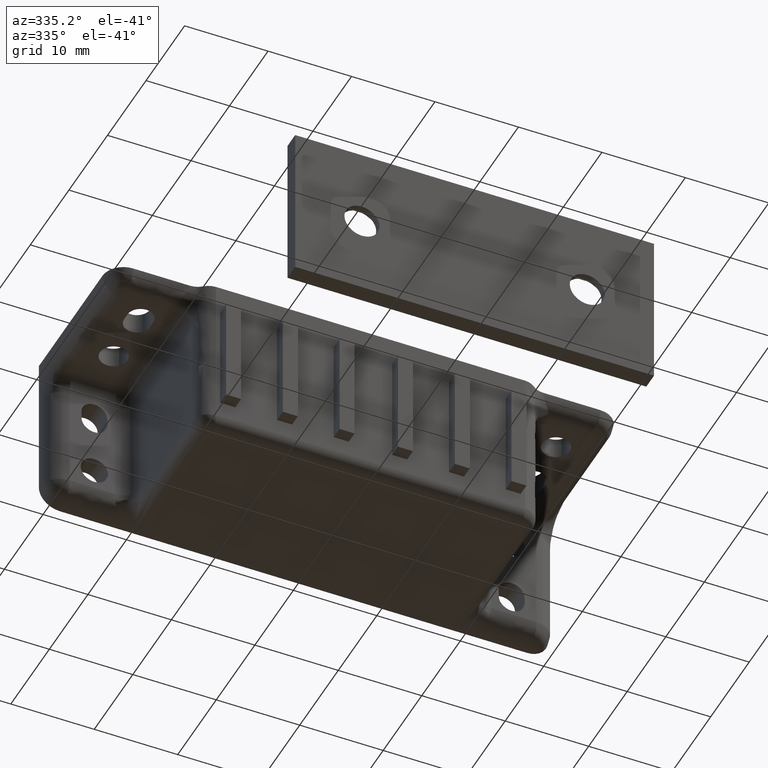
[diagram: clean part render]
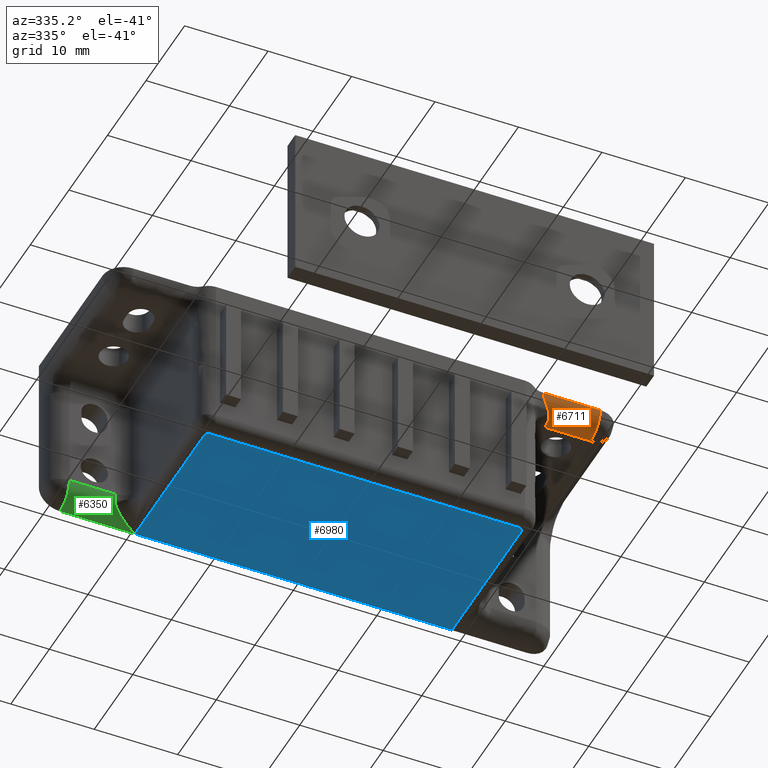
[diagram: same view with three faces highlighted in distinct colors, each labeled with its STEP entity id]
A machine part, auxiliary view with three faces highlighted in distinct colors.
Their STEP definitions:

[orange] entity #6711 — the highlighted face is a freeform B-spline surface patch.
#3738=CARTESIAN_POINT('',(22.500000000000000,-16.500000000000000,7.499999999958390));
#3739=VERTEX_POINT('',#3738);
#4325=CARTESIAN_POINT('',(28.0,-16.500000000000000,7.499999999958390));
#4326=VERTEX_POINT('',#4325);
#4327=CARTESIAN_POINT('',(28.0,-16.500000000000000,7.499999999958390));
#4328=CARTESIAN_POINT('',(22.500000000000000,-16.500000000000000,7.499999999958390));
#4329=QUASI_UNIFORM_CURVE('',1,(#4327,#4328),.UNSPECIFIED.,.F.,.U.);
#4330=EDGE_CURVE('',#4326,#3739,#4329,.T.);
#5240=CARTESIAN_POINT('',(21.145751311064600,-19.0,9.999999999958389));
#5241=VERTEX_POINT('',#5240);
#5280=CARTESIAN_POINT('',(22.500000000000000,-17.333333333333300,7.642977396003239));
#5281=VERTEX_POINT('',#5280);
#5295=CARTESIAN_POINT('',(21.145751311064600,-19.0,9.999999999958389));
#5296=CARTESIAN_POINT('',(21.145751311064600,-19.000000000000011,9.963854046847802));
#5297=CARTESIAN_POINT('',(21.147352928604491,-18.999216504818630,9.927844452167063));
#5298=CARTESIAN_POINT('',(21.153667161062490,-18.996112908623981,9.856090624184484));
#5299=CARTESIAN_POINT('',(21.158411988343669,-18.993776631082149,9.820204858372033));
#5300=CARTESIAN_POINT('',(21.176781509306782,-18.984661863041580,9.714608792973422));
#5301=CARTESIAN_POINT('',(21.194501581448211,-18.975801484904640,9.646568078022835));
#5302=CARTESIAN_POINT('',(21.238349027958339,-18.953264806814161,9.514202816201433));
#5303=CARTESIAN_POINT('',(21.264479009983368,-18.939584012342280,9.449879958030232));
#5304=CARTESIAN_POINT('',(21.323107750106889,-18.907795857526882,9.324188397303074));
#5305=CARTESIAN_POINT('',(21.355784986418382,-18.889578702517859,9.262557836852286));
#5306=CARTESIAN_POINT('',(21.458711505244949,-18.829818643201019,9.084809108610061));
#5307=CARTESIAN_POINT('',(21.534095310978142,-18.783061741658830,8.974533511747254));
#5308=CARTESIAN_POINT('',(21.689448954157481,-18.676204093748719,8.763841362476262));
#5309=CARTESIAN_POINT('',(21.769551021974038,-18.616084574414490,8.663527894844998));
#5310=CARTESIAN_POINT('',(21.889029787539439,-18.514432316122861,8.518259352201421));
#5311=CARTESIAN_POINT('',(21.928660410827881,-18.478684413003389,8.470838384201251));
#5312=CARTESIAN_POINT('',(22.006145492320830,-18.403838906393769,8.378604097697329));
#5313=CARTESIAN_POINT('',(22.044107186776149,-18.364654806212851,8.333663687107709));
#5314=CARTESIAN_POINT('',(22.154642707725142,-18.241277774476831,8.202109923356698));
#5315=CARTESIAN_POINT('',(22.223976793064111,-18.151389335630661,8.118720423528675));
#5316=CARTESIAN_POINT('',(22.316258333729479,-18.001211347073529,7.999890156211960));
#5317=CARTESIAN_POINT('',(22.345129517345779,-17.948390796579190,7.961213851567345));
#5318=CARTESIAN_POINT('',(22.397209511405109,-17.837163429928989,7.886595443289926));
#5319=CARTESIAN_POINT('',(22.420059308343902,-17.779547017301311,7.851172045113658));
#5320=CARTESIAN_POINT('',(22.458103382486101,-17.659831847400330,7.784262597926549));
#5321=CARTESIAN_POINT('',(22.473306363809080,-17.597736635749541,7.752774889995756));
#5322=CARTESIAN_POINT('',(22.489067208810720,-17.500702265735811,7.708743449628510));
#5323=CARTESIAN_POINT('',(22.493137591275580,-17.467652195462879,7.694584863539097));
#5324=CARTESIAN_POINT('',(22.498593922642879,-17.401031621070551,7.667741064838556));
#5325=CARTESIAN_POINT('',(22.500000000000000,-17.367365116371360,7.655009448284259));
#5326=CARTESIAN_POINT('',(22.500000000000000,-17.333333333333300,7.642977396003220));
#5327=B_SPLINE_CURVE_WITH_KNOTS('',3,(#5295,#5296,#5297,#5298,#5299,#5300,#5301,#5302,#5303,#5304,#5305,#5306,#5307,#5308,#5309,#5310,#5311,#5312,#5313,#5314,#5315,#5316,#5317,#5318,#5319,#5320,#5321,#5322,#5323,#5324,#5325,#5326),.UNSPECIFIED.,.F.,.U.,(4,2,2,2,2,2,2,2,2,2,2,2,2,2,2,4),(0.0,0.031249999999999,0.062499999999999,0.124999999999998,0.187499999999996,0.249999999999995,0.374999999999995,0.499999999999996,0.562499999999996,0.624999999999995,0.749999999999994,0.812499999999995,0.874999999999996,0.937499999999997,0.968749999999998,1.0),.UNSPECIFIED.);
#5328=EDGE_CURVE('',#5241,#5281,#5327,.T.);
#5351=CARTESIAN_POINT('',(22.500000000000000,-17.333333333333300,7.642977396003239));
#5352=CARTESIAN_POINT('',(22.499999999999961,-17.066358743832978,7.548446443657825));
#5353=CARTESIAN_POINT('',(22.500000000000039,-16.783209991797229,7.499906633888302));
#5354=CARTESIAN_POINT('',(22.500000000000000,-16.500000000000000,7.499999999958390));
#5355=B_SPLINE_CURVE_WITH_KNOTS('',3,(#5351,#5352,#5353,#5354),.UNSPECIFIED.,.F.,.U.,(4,4),(3.168061E-009,0.849608240408924),.UNSPECIFIED.);
#5356=EDGE_CURVE('',#5281,#3739,#5355,.T.);
#6640=CARTESIAN_POINT('',(28.0,-19.0,9.999999999958389));
#6641=VERTEX_POINT('',#6640);
#6642=CARTESIAN_POINT('',(28.0,-19.0,9.999999999958389));
#6643=CARTESIAN_POINT('',(28.000000000000060,-19.000032408058679,9.815922190158506));
#6644=CARTESIAN_POINT('',(27.999999999999918,-18.960284071108020,9.458009692593102));
#6645=CARTESIAN_POINT('',(28.000000000000050,-18.773093314057700,8.902604718390851));
#6646=CARTESIAN_POINT('',(28.000000000000028,-18.447343927599800,8.388189090553265));
#6647=CARTESIAN_POINT('',(27.999999999999929,-18.009471964458580,7.981474959141492));
#6648=CARTESIAN_POINT('',(28.000000000000131,-17.556663651263161,7.717603541364158));
#6649=CARTESIAN_POINT('',(27.999999999999780,-17.062434359340170,7.544183902175213));
#6650=CARTESIAN_POINT('',(28.000000000000298,-16.704532765433790,7.499946850149078));
#6651=CARTESIAN_POINT('',(28.0,-16.500000000000000,7.499999999958390));
#6652=B_SPLINE_CURVE_WITH_KNOTS('',3,(#6642,#6643,#6644,#6645,#6646,#6647,#6648,#6649,#6650,#6651),.UNSPECIFIED.,.F.,.U.,(4,1,1,1,1,1,1,4),(0.000000087871104,0.552229666188865,1.073795897924603,1.748750623065223,2.362328449976881,2.853219811617691,3.313429068902463,3.927015457195525),.UNSPECIFIED.);
#6653=EDGE_CURVE('',#6641,#4326,#6652,.T.);
#6686=CARTESIAN_POINT('',(28.171356217223380,-18.999143312438889,10.065442370728080));
#6687=CARTESIAN_POINT('',(20.970111188410630,-18.999143312438889,10.065442370728080));
#6688=CARTESIAN_POINT('',(28.171356217223387,-19.070561127989990,7.338106028473095));
#6689=CARTESIAN_POINT('',(20.970111188410630,-19.070561127989990,7.338106028473095));
#6690=CARTESIAN_POINT('',(28.171356217223380,-16.347378651162870,7.504663003903711));
#6691=CARTESIAN_POINT('',(20.970111188410630,-16.347378651162870,7.504663003903711));
#6699=(BOUNDED_SURFACE()B_SPLINE_SURFACE(1,2,((#6686,#6688,#6690),(#6687,#6689,#6691)),.UNSPECIFIED.,.F.,.F.,.U.)B_SPLINE_SURFACE_WITH_KNOTS((2,2),(3,3),(0.0,7.201245028812759),(0.0,4.400105308918330),.UNSPECIFIED.)GEOMETRIC_REPRESENTATION_ITEM()RATIONAL_B_SPLINE_SURFACE(((1.0,0.675590207615660,1.0),(1.0,0.675590207615660,1.0)))REPRESENTATION_ITEM('')SURFACE());
#6700=CARTESIAN_POINT('',(28.0,-19.0,9.999999999958389));
#6701=CARTESIAN_POINT('',(21.145751311064600,-19.0,9.999999999958389));
#6702=QUASI_UNIFORM_CURVE('',1,(#6700,#6701),.UNSPECIFIED.,.F.,.U.);
#6703=EDGE_CURVE('',#6641,#5241,#6702,.T.);
#6704=ORIENTED_EDGE('',*,*,#6703,.T.);
#6705=ORIENTED_EDGE('',*,*,#5328,.T.);
#6706=ORIENTED_EDGE('',*,*,#5356,.T.);
#6707=ORIENTED_EDGE('',*,*,#4330,.F.);
#6708=ORIENTED_EDGE('',*,*,#6653,.F.);
#6709=EDGE_LOOP('',(#6704,#6705,#6706,#6707,#6708));
#6710=FACE_OUTER_BOUND('',#6709,.T.);
#6711=ADVANCED_FACE('',(#6710),#6699,.T.);

[blue] entity #6980 — the highlighted face is a freeform B-spline surface patch.
#5676=CARTESIAN_POINT('',(-18.500000000000000,-18.500000000000000,-10.000000000041720));
#5677=VERTEX_POINT('',#5676);
#5702=CARTESIAN_POINT('',(-19.0,-18.0,-10.000000000041720));
#5703=VERTEX_POINT('',#5702);
#5716=CARTESIAN_POINT('',(-19.0,-18.0,-10.000000000041720));
#5717=CARTESIAN_POINT('',(-19.000066589440671,-18.065459886249499,-10.000000000041741));
#5718=CARTESIAN_POINT('',(-18.975552033920518,-18.188122429858598,-10.000000000041700));
#5719=CARTESIAN_POINT('',(-18.873425974948411,-18.349505823024529,-10.000000000041730));
#5720=CARTESIAN_POINT('',(-18.712627557780600,-18.468705007015782,-10.000000000041730));
#5721=CARTESIAN_POINT('',(-18.573653843916951,-18.500115390870761,-10.000000000041720));
#5722=CARTESIAN_POINT('',(-18.500000000000000,-18.500000000000000,-10.000000000041720));
#5723=B_SPLINE_CURVE_WITH_KNOTS('',3,(#5716,#5717,#5718,#5719,#5720,#5721,#5722),.UNSPECIFIED.,.F.,.U.,(4,1,1,1,4),(-0.000003513963359,0.196369510045105,0.368200240697833,0.564556559565455,0.785475099195748),.UNSPECIFIED.);
#5724=EDGE_CURVE('',#5703,#5677,#5723,.T.);
#5792=CARTESIAN_POINT('',(19.0,-18.0,-10.000000000041720));
#5793=VERTEX_POINT('',#5792);
#5819=CARTESIAN_POINT('',(18.500000000000000,-18.500000000000000,-10.000000000041720));
#5820=VERTEX_POINT('',#5819);
#5833=CARTESIAN_POINT('',(18.500000000000000,-18.500000000000000,-10.000000000041720));
#5834=CARTESIAN_POINT('',(18.581855716143039,-18.500180169960021,-10.000000000041720));
#5835=CARTESIAN_POINT('',(18.704390737399379,-18.469175947193310,-10.000000000041741));
#5836=CARTESIAN_POINT('',(18.859432358567570,-18.360000194217879,-10.000000000041741));
#5837=CARTESIAN_POINT('',(18.968705502531979,-18.212633798046699,-10.000000000041659));
#5838=CARTESIAN_POINT('',(19.000115013317760,-18.073652975420050,-10.000000000041760));
#5839=CARTESIAN_POINT('',(19.0,-18.0,-10.000000000041720));
#5840=B_SPLINE_CURVE_WITH_KNOTS('',3,(#5833,#5834,#5835,#5836,#5837,#5838,#5839),.UNSPECIFIED.,.F.,.U.,(4,1,1,1,4),(-0.000003513962306,0.245466734294575,0.368200240698227,0.564556559565591,0.785475099195753),.UNSPECIFIED.);
#5841=EDGE_CURVE('',#5820,#5793,#5840,.T.);
#5937=CARTESIAN_POINT('',(-19.0,0.0,-10.000000000041720));
#5938=VERTEX_POINT('',#5937);
#6132=CARTESIAN_POINT('',(19.0,0.0,-10.000000000041720));
#6133=VERTEX_POINT('',#6132);
#6252=CARTESIAN_POINT('',(-19.0,-18.0,-10.000000000041720));
#6253=CARTESIAN_POINT('',(-19.0,0.0,-10.000000000041720));
#6254=QUASI_UNIFORM_CURVE('',1,(#6252,#6253),.UNSPECIFIED.,.F.,.U.);
#6255=EDGE_CURVE('',#5703,#5938,#6254,.T.);
#6277=CARTESIAN_POINT('',(18.500000000000000,-18.500000000000000,-10.000000000041720));
#6278=CARTESIAN_POINT('',(-18.500000000000000,-18.500000000000000,-10.000000000041720));
#6279=QUASI_UNIFORM_CURVE('',1,(#6277,#6278),.UNSPECIFIED.,.F.,.U.);
#6280=EDGE_CURVE('',#5820,#5677,#6279,.T.);
#6300=CARTESIAN_POINT('',(19.0,0.0,-10.000000000041720));
#6301=CARTESIAN_POINT('',(19.0,-18.0,-10.000000000041720));
#6302=QUASI_UNIFORM_CURVE('',1,(#6300,#6301),.UNSPECIFIED.,.F.,.U.);
#6303=EDGE_CURVE('',#6133,#5793,#6302,.T.);
#6963=CARTESIAN_POINT('',(-20.898099926348628,-19.424074964143411,-10.000000000041720));
#6964=CARTESIAN_POINT('',(20.898100945588052,-19.424074964143411,-10.000000000041720));
#6965=CARTESIAN_POINT('',(-20.898099926348628,0.924075460352078,-10.000000000041720));
#6966=CARTESIAN_POINT('',(20.898100945588052,0.924075460352078,-10.000000000041720));
#6967=B_SPLINE_SURFACE_WITH_KNOTS('',1,1,((#6963,#6965),(#6964,#6966)),.UNSPECIFIED.,.F.,.F.,.U.,(2,2),(2,2),(0.0,41.796200871936684),(0.0,20.348150424495490),.UNSPECIFIED.);
#6968=ORIENTED_EDGE('',*,*,#5841,.F.);
#6969=ORIENTED_EDGE('',*,*,#6280,.T.);
#6970=ORIENTED_EDGE('',*,*,#5724,.F.);
#6971=ORIENTED_EDGE('',*,*,#6255,.T.);
#6972=CARTESIAN_POINT('',(-19.0,0.0,-10.000000000041720));
#6973=CARTESIAN_POINT('',(19.0,0.0,-10.000000000041720));
#6974=QUASI_UNIFORM_CURVE('',1,(#6972,#6973),.UNSPECIFIED.,.F.,.U.);
#6975=EDGE_CURVE('',#5938,#6133,#6974,.T.);
#6976=ORIENTED_EDGE('',*,*,#6975,.T.);
#6977=ORIENTED_EDGE('',*,*,#6303,.T.);
#6978=EDGE_LOOP('',(#6968,#6969,#6970,#6971,#6976,#6977));
#6979=FACE_OUTER_BOUND('',#6978,.T.);
#6980=ADVANCED_FACE('',(#6979),#6967,.F.);

[green] entity #6350 — the highlighted face is a freeform B-spline surface patch.
#4004=CARTESIAN_POINT('',(-22.500000000000000,-2.500000000000000,-7.500000000041720));
#4005=VERTEX_POINT('',#4004);
#4287=CARTESIAN_POINT('',(-28.0,-2.500000000000000,-7.500000000041720));
#4288=VERTEX_POINT('',#4287);
#4289=CARTESIAN_POINT('',(-28.0,-2.500000000000000,-7.500000000041720));
#4290=CARTESIAN_POINT('',(-22.500000000000000,-2.500000000000000,-7.500000000041720));
#4291=QUASI_UNIFORM_CURVE('',1,(#4289,#4290),.UNSPECIFIED.,.F.,.U.);
#4292=EDGE_CURVE('',#4288,#4005,#4291,.T.);
#5937=CARTESIAN_POINT('',(-19.0,0.0,-10.000000000041720));
#5938=VERTEX_POINT('',#5937);
#5939=CARTESIAN_POINT('',(-22.500000000000000,-2.437490107608925,-8.055555555597278));
#5940=VERTEX_POINT('',#5939);
#5941=CARTESIAN_POINT('',(-19.0,2.964375E-016,-10.000000000041720));
#5942=CARTESIAN_POINT('',(-19.088304309214440,-0.055626499058273,-10.000000000041720));
#5943=CARTESIAN_POINT('',(-19.176928158287591,-0.111454232228651,-9.998138080960098));
#5944=CARTESIAN_POINT('',(-19.353670856384650,-0.222845224725241,-9.990673789005941));
#5945=CARTESIAN_POINT('',(-19.441968704202001,-0.278521129914903,-9.985071861127018));
#5946=CARTESIAN_POINT('',(-19.706599966719342,-0.445547965242969,-9.962541717238812));
#5947=CARTESIAN_POINT('',(-19.881933500303081,-0.556429158618418,-9.939976982584714));
#5948=CARTESIAN_POINT('',(-20.229326333131588,-0.777057685618057,-9.878924638848579));
#5949=CARTESIAN_POINT('',(-20.401508171781789,-0.886876461520909,-9.840447037488987));
#5950=CARTESIAN_POINT('',(-20.656992663680661,-1.051057175065053,-9.769105410334101));
#5951=CARTESIAN_POINT('',(-20.741686604307532,-1.105692980786454,-9.743042040174862));
#5952=CARTESIAN_POINT('',(-20.910002768734071,-1.214821261850599,-9.685864557447049));
#5953=CARTESIAN_POINT('',(-20.993748586571940,-1.269394149017715,-9.654702431153304));
#5954=CARTESIAN_POINT('',(-21.242269412834212,-1.432430569553638,-9.552939100990042));
#5955=CARTESIAN_POINT('',(-21.403109244334111,-1.539363310881944,-9.474789607944462));
#5956=CARTESIAN_POINT('',(-21.634438797291821,-1.696869770369846,-9.337251025894613));
#5957=CARTESIAN_POINT('',(-21.709876952898352,-1.748887343544761,-9.287987789325939));
#5958=CARTESIAN_POINT('',(-21.819901392012959,-1.826120738698104,-9.207823136802919));
#5959=CARTESIAN_POINT('',(-21.856051328235480,-1.851732743538915,-9.180051586421371));
#5960=CARTESIAN_POINT('',(-21.927149990779291,-1.902676112313473,-9.122131652535630));
#5961=CARTESIAN_POINT('',(-21.962171673118551,-1.928062230115573,-9.091909359805346));
#5962=CARTESIAN_POINT('',(-22.064045641474689,-2.002959566015596,-8.998182388308097));
#5963=CARTESIAN_POINT('',(-22.128041826741342,-2.051425105986207,-8.931446858784822));
#5964=CARTESIAN_POINT('',(-22.245911265843670,-2.144877483274795,-8.787200705688198));
#5965=CARTESIAN_POINT('',(-22.299886534951192,-2.189918514028851,-8.709659533098103));
#5966=CARTESIAN_POINT('',(-22.370004375376549,-2.254014413821820,-8.582438840477337));
#5967=CARTESIAN_POINT('',(-22.391270896383400,-2.274545329932347,-8.538690571014399));
#5968=CARTESIAN_POINT('',(-22.428943975803200,-2.313758292705320,-8.448133494377810));
#5969=CARTESIAN_POINT('',(-22.445354753660450,-2.332470971720807,-8.401194527028920));
#5970=CARTESIAN_POINT('',(-22.485274304694642,-2.384418698637322,-8.258180128477896));
#5971=CARTESIAN_POINT('',(-22.500000000000000,-2.413890026054169,-8.159100493188552));
#5972=CARTESIAN_POINT('',(-22.500000000000000,-2.437490107608925,-8.055555555597278));
#5973=B_SPLINE_CURVE_WITH_KNOTS('',3,(#5941,#5942,#5943,#5944,#5945,#5946,#5947,#5948,#5949,#5950,#5951,#5952,#5953,#5954,#5955,#5956,#5957,#5958,#5959,#5960,#5961,#5962,#5963,#5964,#5965,#5966,#5967,#5968,#5969,#5970,#5971,#5972),.UNSPECIFIED.,.F.,.U.,(4,2,2,2,2,2,2,2,2,2,2,2,2,2,2,4),(0.0,0.062500000000000,0.125000000000000,0.249999999999999,0.374999999999999,0.437499999999999,0.499999999999998,0.624999999999999,0.687499999999999,0.718749999999999,0.749999999999999,0.812500000000000,0.875000000000001,0.906250000000001,0.937500000000001,1.0),.UNSPECIFIED.);
#5974=EDGE_CURVE('',#5938,#5940,#5973,.T.);
#6044=CARTESIAN_POINT('',(-22.500000000000000,-2.437490107608925,-8.055555555597278));
#6045=CARTESIAN_POINT('',(-22.500000000000039,-2.479006456702304,-7.873483051584259));
#6046=CARTESIAN_POINT('',(-22.499999999999950,-2.500025545364430,-7.686746854111958));
#6047=CARTESIAN_POINT('',(-22.500000000000000,-2.500000000000000,-7.500000000041720));
#6048=B_SPLINE_CURVE_WITH_KNOTS('',3,(#6044,#6045,#6046,#6047),.UNSPECIFIED.,.F.,.U.,(4,4),(1.356911E-009,0.560237309409323),.UNSPECIFIED.);
#6049=EDGE_CURVE('',#5940,#4005,#6048,.T.);
#6311=CARTESIAN_POINT('',(-28.225000000000001,0.021816338745933,-9.999904807702148));
#6312=CARTESIAN_POINT('',(-18.769375000000000,0.021816338745933,-9.999904807702148));
#6313=CARTESIAN_POINT('',(-28.224999999999998,-2.659003355029381,-10.023299966740584));
#6314=CARTESIAN_POINT('',(-18.769374999999997,-2.659003355029381,-10.023299966740584));
#6315=CARTESIAN_POINT('',(-28.225000000000001,-2.495336996054667,-7.347378651204577));
#6316=CARTESIAN_POINT('',(-18.769375000000000,-2.495336996054667,-7.347378651204577));
#6324=(BOUNDED_SURFACE()B_SPLINE_SURFACE(1,2,((#6311,#6313,#6315),(#6312,#6314,#6316)),.UNSPECIFIED.,.F.,.F.,.U.)B_SPLINE_SURFACE_WITH_KNOTS((2,2),(3,3),(0.0,9.455625000000001),(0.0,4.348123749609331),.UNSPECIFIED.)GEOMETRIC_REPRESENTATION_ITEM()RATIONAL_B_SPLINE_SURFACE(((1.0,0.681998360062499,1.0),(1.0,0.681998360062499,1.0)))REPRESENTATION_ITEM('')SURFACE());
#6325=CARTESIAN_POINT('',(-28.0,0.0,-10.000000000041720));
#6326=VERTEX_POINT('',#6325);
#6327=CARTESIAN_POINT('',(-28.0,0.0,-10.000000000041720));
#6328=CARTESIAN_POINT('',(-19.0,0.0,-10.000000000041720));
#6329=QUASI_UNIFORM_CURVE('',1,(#6327,#6328),.UNSPECIFIED.,.F.,.U.);
#6330=EDGE_CURVE('',#6326,#5938,#6329,.T.);
#6331=ORIENTED_EDGE('',*,*,#6330,.T.);
#6332=ORIENTED_EDGE('',*,*,#5974,.T.);
#6333=ORIENTED_EDGE('',*,*,#6049,.T.);
#6334=ORIENTED_EDGE('',*,*,#4292,.F.);
#6335=CARTESIAN_POINT('',(-28.0,-2.500000000000000,-7.500000000041720));
#6336=CARTESIAN_POINT('',(-27.999999999999989,-2.500127627537824,-7.755676886920587));
#6337=CARTESIAN_POINT('',(-28.000000000000060,-2.430350194401667,-8.205570760771519));
#6338=CARTESIAN_POINT('',(-27.999999999999861,-2.176523894840217,-8.768799882014704));
#6339=CARTESIAN_POINT('',(-28.000000000000171,-1.839837852090001,-9.222757461376348));
#6340=CARTESIAN_POINT('',(-28.000000000000291,-1.434149983489509,-9.572730998535885));
#6341=CARTESIAN_POINT('',(-27.999999999999279,-0.999120901188135,-9.805204647131033));
#6342=CARTESIAN_POINT('',(-28.000000000000579,-0.531750361564793,-9.959596068013646));
#6343=CARTESIAN_POINT('',(-27.999999999999591,-0.204534829854182,-10.000057168513520));
#6344=CARTESIAN_POINT('',(-28.0,0.0,-10.000000000041720));
#6345=B_SPLINE_CURVE_WITH_KNOTS('',3,(#6335,#6336,#6337,#6338,#6339,#6340,#6341,#6342,#6343,#6344),.UNSPECIFIED.,.F.,.U.,(4,1,1,1,1,1,1,4),(0.000000087866411,0.766993594787226,1.349921685520906,1.840809453964849,2.454379948484580,2.945261614121208,3.313429068901162,3.927015457195560),.UNSPECIFIED.);
#6346=EDGE_CURVE('',#4288,#6326,#6345,.T.);
#6347=ORIENTED_EDGE('',*,*,#6346,.T.);
#6348=EDGE_LOOP('',(#6331,#6332,#6333,#6334,#6347));
#6349=FACE_OUTER_BOUND('',#6348,.T.);
#6350=ADVANCED_FACE('',(#6349),#6324,.T.);